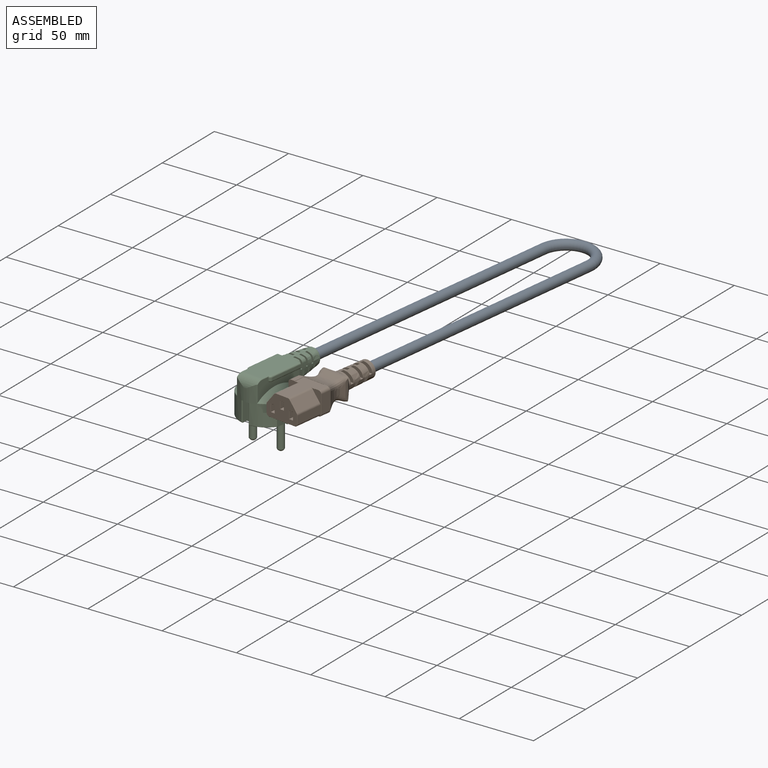
[diagram: assembled view]
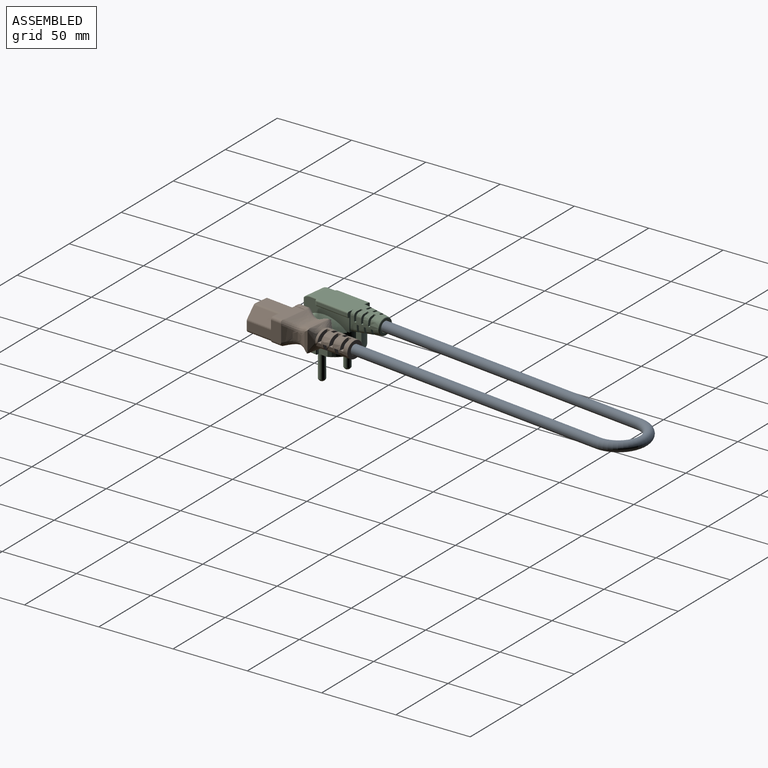
[diagram: assembled view, second angle]
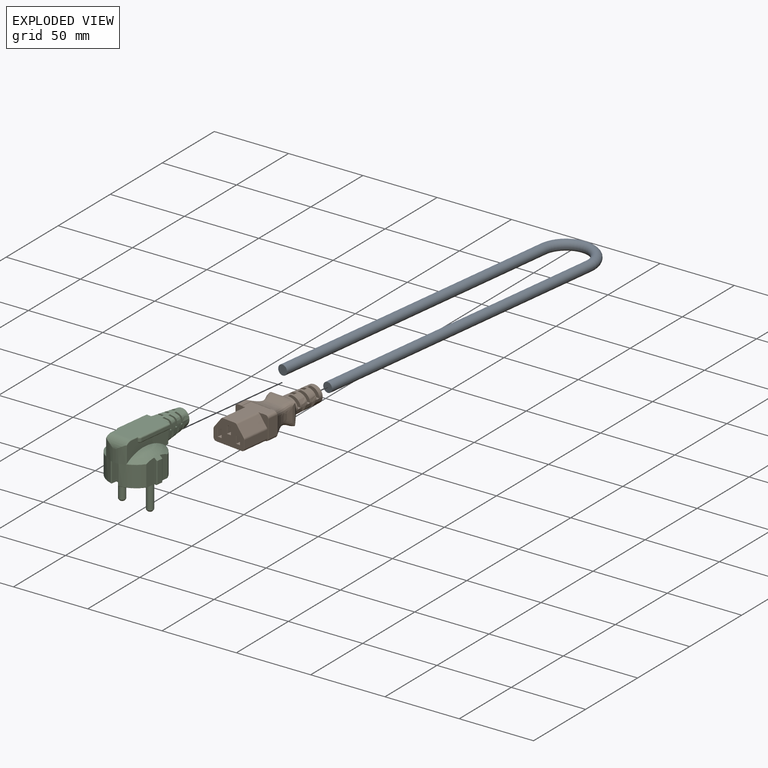
[diagram: exploded view]
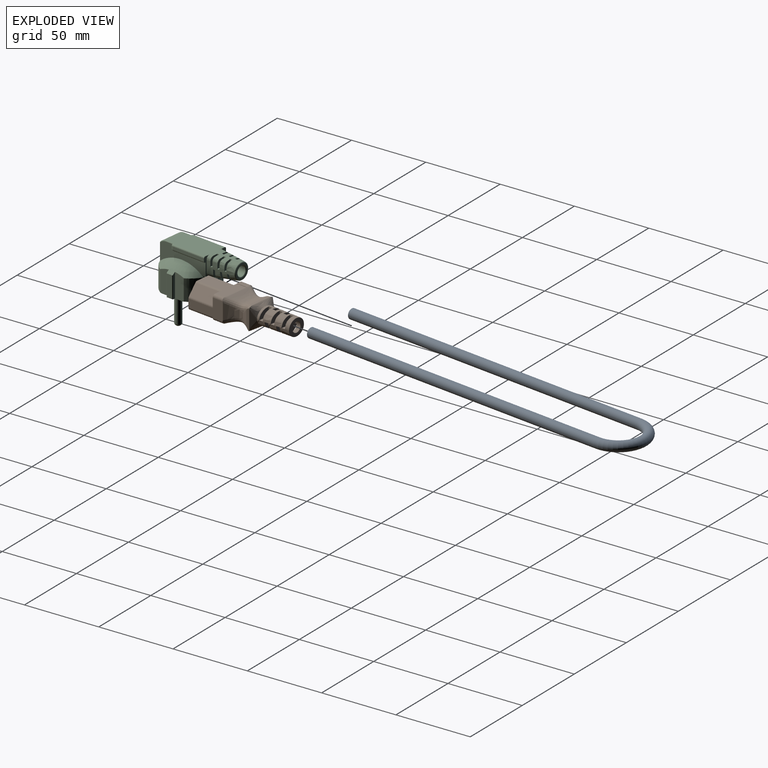
[diagram: exploded view, second angle]
ASSEMBLY  parts=3 mates=2
PART A: 5 faces, bbox 43.5x235.5x6.6 mm
  f0: plane 6.6x6.6mm, normal (0,1,0), area 34.2mm2, adj f2
  f1: plane 6.6x6.6mm, normal (0,1,0), area 34.2mm2, adj f4
  f2: cylinder r=3.3mm len=213.78mm, axis (0,-1,0), area 4432.6mm2, adj f0,f3
  f3: torus R=16.8mm, axis (0,0,1), area 1094.1mm2, adj f2,f4
  f4: cylinder r=3.3mm len=213.78mm, axis (0,1,0), area 4432.6mm2, adj f1,f3
PART B: 190 faces, bbox 44x23.6x70.4 mm
  f0: plane 7.5x2.75mm, normal (0,-1,0), area 20.6mm2, adj f26,f55,f101,f145,f188
  f1: plane 7.15x2.85mm, normal (0,1,0), area 20.4mm2, adj f57,f98,f99,f150
  f2: plane 7.03x5.83mm, normal (0,0,-1), area 20.7mm2, adj f38,f60,f63,f90
  f3: plane 6.91x5.65mm, normal (0,0,1), area 20.2mm2, adj f60,f63,f90,f132
  f4: plane 7.32x5.69mm, normal (0,0,-1), area 22.1mm2, adj f66,f69,f90,f127
  f5: plane 7.44x5.69mm, normal (0,0,1), area 22.7mm2, adj f66,f69,f90,f137
  f6: plane 7.59x5.72mm, normal (0,0,-1), area 23.2mm2, adj f72,f75,f90,f128
  f7: plane 7.7x5.72mm, normal (0,0,1), area 23.8mm2, adj f72,f75,f90,f134
  f8: plane 6.91x5.64mm, normal (0,0,-1), area 20.3mm2, adj f78,f81,f90,f130
  f9: plane 7.04x5.66mm, normal (0,0,1), area 20.8mm2, adj f78,f81,f90,f131
  f10: plane 7.18x5.68mm, normal (0,0,-1), area 21.4mm2, adj f84,f87,f90,f129
  f11: plane 7.3x5.69mm, normal (0,0,1), area 21.9mm2, adj f84,f87,f90,f133
  f12: plane 15.8x7.24mm, normal (0,0,-1), area 34.4mm2, adj f16,f17,f18,f55,f58,f104,f105,f106
  f13: plane 22.9x15.5mm, normal (0,0,-1), area 259.6mm2, adj f156,f157,f158,f159,f160,f161,f162,f163
  f14: plane 18.7x6.55mm, normal (-0.78,0.62,0), area 156.5mm2, adj f20,f102,f107,f161
  f15: plane 18.7x5.15mm, normal (-1,0,0), area 96.3mm2, adj f20,f102,f103,f157
  f16: plane 26.2x19.1mm, normal (0,-1,0), area 470.4mm2, adj f12,f20,f54,f55,f56,f103,f104,f158
  f17: plane 18.7x5.15mm, normal (1,0,0), area 96.3mm2, adj f12,f104,f105,f162
  f18: plane 18.7x6.55mm, normal (0.78,0.62,0), area 156.5mm2, adj f12,f105,f106,f166
  f19: plane 26.2x14.9mm, normal (0,1,0), area 273.3mm2, adj f57,f58,f59,f106,f107,f144,f155,f165
  f20: plane 15.8x7.24mm, normal (0,0,-1), area 34.4mm2, adj f14,f15,f16,f54,f57,f102,f103,f107
  f21: plane 7.15x2.85mm, normal (0,1,0), area 20.4mm2, adj f58,f97,f98,f149
  f22: plane 12.06x7.56mm, normal (-1,0,0), area 89.9mm2, adj f25,f99,f100,f152,f184,f189
  f23: plane 7.5x2.75mm, normal (0,-1,0), area 20.6mm2, adj f26,f54,f100,f154,f189
  f24: plane 12.02x7.49mm, normal (1,0,0), area 89.7mm2, adj f97,f101,f118,f147,f180,f188
  f25: bspline ~16x15.1mm, area 119.8mm2, adj f22,f30,f184,f187,f189
  f26: bspline ~24.6x15.1mm, area 224.9mm2, adj f0,f23,f31,f143,f188,f189
  f27: bspline ~16x15.1mm, area 119.5mm2, adj f32,f118,f180,f183,f188
  f28: bspline ~24.6x15.1mm, area 198.2mm2, adj f96,f98,f180,f181,f184,f186
  f29: plane 14.99x1.75mm, normal (0,1,0), area 24.2mm2, adj f96,f110,f183,f187
  f30: plane 14.06x2.24mm, normal (-1,0,0), area 26.9mm2, adj f25,f108,f109,f111,f187,f189
  f31: plane 19.38x2.19mm, normal (0,-1,0), area 38.1mm2, adj f26,f112,f114,f116,f188,f189
  f32: plane 14.02x2.18mm, normal (1,0,0), area 26.9mm2, adj f27,f113,f115,f117,f183,f188
  f33: bspline ~15x5.26mm, area 51.8mm2, adj f38,f94,f95,f109
  f34: bspline ~19.4x3.99mm, area 59.1mm2, adj f38,f93,f94,f114
  f35: bspline ~15x5.26mm, area 51.8mm2, adj f38,f92,f93,f115
  f36: bspline ~19.4x3.99mm, area 57.4mm2, adj f38,f92,f95,f110,f183,f187
  f37: plane 12.12x11.2mm, normal (0,0,1), area 68.3mm2, adj f138,f139,f140,f141,f142
  f38: bspline ~22.9x14.39mm, area 631.4mm2, adj f2,f33,f34,f35,f36,f60,f61,f62
  f39: plane 15.4x5mm, normal (-1,0,0), area 77mm2, adj f40,f42,f43,f172
  f40: plane 15.4x2.7mm, normal (0,1,0), area 41.6mm2, adj f39,f41,f43,f173
  f41: plane 15.4x5mm, normal (1,0,0), area 77mm2, adj f40,f42,f43,f175
  f42: plane 15.4x2.7mm, normal (0,-1,0), area 41.6mm2, adj f39,f41,f43,f174
  f43: plane 5x2.7mm, normal (0,0,-1), area 13.5mm2, adj f39,f40,f41,f42
  f44: plane 15.4x5mm, normal (1,0,0), area 77mm2, adj f45,f47,f48,f176
  f45: plane 15.4x2.7mm, normal (0,-1,0), area 41.6mm2, adj f44,f46,f48,f177
  f46: plane 15.4x5mm, normal (-1,0,0), area 77mm2, adj f45,f47,f48,f179
  f47: plane 15.4x2.7mm, normal (0,1,0), area 41.6mm2, adj f44,f46,f48,f178
  f48: plane 5x2.7mm, normal (0,0,-1), area 13.5mm2, adj f44,f45,f46,f47
  f49: plane 15.4x5mm, normal (1,0,0), area 77mm2, adj f50,f52,f53,f168
  f50: plane 15.4x2.7mm, normal (0,-1,0), area 41.6mm2, adj f49,f51,f53,f170
  f51: plane 15.4x5mm, normal (-1,0,0), area 77mm2, adj f50,f52,f53,f171
  f52: plane 15.4x2.7mm, normal (0,1,0), area 41.6mm2, adj f49,f51,f53,f169
  f53: plane 5x2.7mm, normal (0,0,-1), area 13.5mm2, adj f49,f50,f51,f52
  f54: plane 7.6x0.15mm, normal (1,0,0), area 1.1mm2, adj f16,f20,f23,f56,f143,f154
  f55: plane 7.6x0.15mm, normal (-1,0,0), area 1.1mm2, adj f0,f12,f16,f56,f143,f145
  f56: plane 15.1x0.05mm, normal (0,0,-1), area 0.8mm2, adj f16,f54,f55,f143
  f57: plane 7.5x0.25mm, normal (1,0,0), area 1.1mm2, adj f1,f19,f20,f59,f98,f150,f155
  f58: plane 7.5x0.25mm, normal (-1,0,0), area 1.1mm2, adj f12,f19,f21,f59,f98,f144,f149
  f59: plane 14.9x0.13mm, normal (0,0,-1), area 2mm2, adj f19,f57,f58,f98
  f60: plane 3.05x2.4mm, normal (0,1,0), area 6.9mm2, adj f2,f3,f38,f90,f132
  f61: plane 2.5x2.39mm, normal (1,0,0), area 5.5mm2, adj f38,f64,f65,f90,f123,f124
  f62: plane 3.05x2.5mm, normal (0,-1,0), area 6.9mm2, adj f38,f64,f65,f90,f123,f124
  f63: plane 2.4x2.39mm, normal (-1,0,0), area 5.5mm2, adj f2,f3,f38,f90,f132
  f64: plane 6.73x5.63mm, normal (0,0,-1), area 19.5mm2, adj f61,f62,f90,f123
  f65: plane 6.86x5.66mm, normal (0,0,1), area 20.1mm2, adj f61,f62,f90,f124
  f66: plane 2.5x2.42mm, normal (1,0,0), area 5.6mm2, adj f4,f5,f38,f90,f127,f137
  f67: plane 3.63x2.5mm, normal (0,-1,0), area 8.2mm2, adj f38,f70,f71,f90,f119,f120
  f68: plane 2.5x2.42mm, normal (-1,0,0), area 5.6mm2, adj f38,f70,f71,f90,f119,f120
  f69: plane 3.63x2.5mm, normal (0,1,0), area 8.2mm2, adj f4,f5,f38,f90,f127,f137
  f70: plane 7.37x5.68mm, normal (0,0,-1), area 22.2mm2, adj f67,f68,f90,f120
  f71: plane 7.51x5.71mm, normal (0,0,1), area 22.8mm2, adj f67,f68,f90,f119
  f72: plane 3.82x2.5mm, normal (0,1,0), area 8.7mm2, adj f6,f7,f38,f90,f128,f134
  f73: plane 2.5x2.43mm, normal (1,0,0), area 5.6mm2, adj f38,f76,f77,f90,f135,f136
  f74: plane 3.82x2.5mm, normal (0,-1,0), area 8.7mm2, adj f38,f76,f77,f90,f135,f136
  f75: plane 2.5x2.43mm, normal (-1,0,0), area 5.6mm2, adj f6,f7,f38,f90,f128,f134
  f76: plane 7.53x5.71mm, normal (0,0,-1), area 23.1mm2, adj f73,f74,f90,f135
  f77: plane 7.65x5.72mm, normal (0,0,1), area 23.7mm2, adj f73,f74,f90,f136
  f78: plane 2.5x2.4mm, normal (1,0,0), area 5.5mm2, adj f8,f9,f38,f90,f130,f131
  f79: plane 3.24x2.5mm, normal (0,-1,0), area 7.3mm2, adj f38,f82,f83,f90,f121,f122
  f80: plane 2.5x2.4mm, normal (-1,0,0), area 5.5mm2, adj f38,f82,f83,f90,f121,f122
  f81: plane 3.24x2.5mm, normal (0,1,0), area 7.3mm2, adj f8,f9,f38,f90,f130,f131
  f82: plane 6.96x5.64mm, normal (0,0,-1), area 20.4mm2, adj f79,f80,f90,f121
  f83: plane 7.1x5.67mm, normal (0,0,1), area 21mm2, adj f79,f80,f90,f122
  f84: plane 3.42x2.5mm, normal (0,1,0), area 7.7mm2, adj f10,f11,f38,f90,f129,f133
  f85: plane 2.5x2.4mm, normal (1,0,0), area 5.5mm2, adj f38,f88,f89,f90,f125,f126
  f86: plane 3.42x2.5mm, normal (0,-1,0), area 7.7mm2, adj f38,f88,f89,f90,f125,f126
  f87: plane 2.5x2.41mm, normal (-1,0,0), area 5.5mm2, adj f10,f11,f38,f90,f129,f133
  f88: plane 7.12x5.68mm, normal (0,0,-1), area 21.3mm2, adj f85,f86,f90,f125
  f89: plane 7.24x5.68mm, normal (0,0,1), area 21.8mm2, adj f85,f86,f90,f126
  f90: cylinder r=3.3mm len=32.6mm, axis (0,0,1), area 543mm2, adj f2,f3,f4,f5,f6,f7,f8,f9
  f91: plane 6.6x6.6mm, normal (0,0,1), area 34.2mm2, adj f90
  f92: bspline ~5.37x4.03mm, area 7.7mm2, adj f35,f36,f113,f183
  f93: bspline ~5.48x5.43mm, area 5.5mm2, adj f34,f35,f116,f117
  f94: bspline ~6.49x4.93mm, area 6mm2, adj f33,f34,f111,f112
  f95: bspline ~4.65x4.6mm, area 6.2mm2, adj f33,f36,f108,f187
  f96: bspline ~22x0.84mm, area 11.5mm2, adj f28,f29,f181,f186
  f97: cylinder r=2mm len=7.37mm, axis (0,0,-1), area 22.4mm2, adj f21,f24,f98,f148,f180
  f98: bspline ~31.43x0.68mm, area 9.9mm2, adj f1,f21,f28,f57,f58,f59,f97,f99
  f99: cylinder r=2mm len=7.37mm, axis (0,0,1), area 22.4mm2, adj f1,f22,f98,f151,f184
  f100: cylinder r=2mm len=7.37mm, axis (0,0,-1), area 23mm2, adj f22,f23,f153,f189
  f101: cylinder r=2mm len=7.37mm, axis (0,0,1), area 23mm2, adj f0,f24,f146,f188
  f102: cylinder r=2mm len=18.7mm, axis (0,0,-1), area 25.1mm2, adj f14,f15,f20,f159
  f103: cylinder r=2mm len=18.7mm, axis (0,0,-1), area 58.7mm2, adj f15,f16,f20,f156
  f104: cylinder r=2mm len=18.7mm, axis (0,0,1), area 58.7mm2, adj f12,f16,f17,f160
  f105: cylinder r=2mm len=18.7mm, axis (0,0,-1), area 25.1mm2, adj f12,f17,f18,f164
  f106: cylinder r=2mm len=18.8mm, axis (0,0,-1), area 33.6mm2, adj f12,f18,f19,f144,f167
  f107: cylinder r=2mm len=18.8mm, axis (0,0,1), area 33.6mm2, adj f14,f19,f20,f155,f163
  f108: bspline ~0.54x0.13mm, area 0mm2, adj f30,f95,f109,f187
  f109: bspline ~12.21x0.08mm, area 0.8mm2, adj f30,f33,f108,f111
  f110: bspline ~15.52x0.07mm, area 0.8mm2, adj f29,f36,f183,f187
  f111: bspline ~1.45x0.58mm, area 0.1mm2, adj f30,f94,f109,f112,f189
  f112: bspline ~1.76x0.49mm, area 0.1mm2, adj f31,f94,f111,f114,f189
  f113: bspline ~1.45x0.58mm, area 0mm2, adj f32,f92,f115,f183
  f114: bspline ~16.19x0.07mm, area 0.9mm2, adj f31,f34,f112,f116
  f115: bspline ~12.21x0.08mm, area 0.8mm2, adj f32,f35,f113,f117
  f116: bspline ~1.45x0.48mm, area 0.1mm2, adj f31,f93,f114,f117,f188
  f117: bspline ~1.47x0.48mm, area 0.1mm2, adj f32,f93,f115,f116,f188
  f118: bspline ~12x0.05mm, area 0.5mm2, adj f24,f27,f180,f188
  f119: bspline ~8.17x6.27mm, area 1.5mm2, adj f38,f67,f68,f71
  f120: bspline ~8.03x6.25mm, area 1.5mm2, adj f38,f67,f68,f70
  f121: bspline ~7.61x6.22mm, area 1.4mm2, adj f38,f79,f80,f82
  f122: bspline ~7.69x6.23mm, area 1.4mm2, adj f38,f79,f80,f83
  f123: bspline ~7.37x6.21mm, area 1.4mm2, adj f38,f61,f62,f64
  f124: bspline ~7.5x6.22mm, area 1.4mm2, adj f38,f61,f62,f65
  f125: bspline ~7.76x6.24mm, area 1.5mm2, adj f38,f85,f86,f88
  f126: bspline ~7.89x6.24mm, area 1.4mm2, adj f38,f85,f86,f89
  f127: bspline ~7.98x6.26mm, area 1.5mm2, adj f4,f38,f66,f69
  f128: bspline ~8.24x6.28mm, area 1.5mm2, adj f6,f38,f72,f75
  f129: bspline ~7.82x6.24mm, area 1.5mm2, adj f10,f38,f84,f87
  f130: bspline ~7.56x6.36mm, area 1.4mm2, adj f8,f38,f78,f81
  f131: bspline ~7.69x6.23mm, area 1.4mm2, adj f9,f38,f78,f81
  f132: bspline ~7.55x6.22mm, area 1.4mm2, adj f3,f38,f60,f63
  f133: bspline ~7.95x6.25mm, area 1.4mm2, adj f11,f38,f84,f87
  f134: bspline ~8.37x6.28mm, area 1.5mm2, adj f7,f38,f72,f75
  f135: bspline ~8.19x6.27mm, area 1.5mm2, adj f38,f73,f74,f76
  f136: bspline ~8.31x6.29mm, area 1.5mm2, adj f38,f73,f74,f77
  f137: bspline ~7.51x5.69mm, area 1.5mm2, adj f5,f38,f66,f69
  f138: bspline ~7.99x2.08mm, area 1.2mm2, adj f37,f38,f139,f140
  f139: bspline ~8.62x1.93mm, area 1.3mm2, adj f37,f38,f138,f141
  f140: bspline ~8.62x1.93mm, area 1.3mm2, adj f37,f38,f138,f141
  f141: bspline ~7.99x2.08mm, area -2.5mm2, adj f37,f38,f139,f140
  f142: cone r=3.3mm half-angle=45deg, axis (0,0,1), area 3mm2, adj f37,f90
  f143: plane 15.1x0.1mm, normal (0,-0.71,-0.71), area 2.1mm2, adj f26,f54,f55,f56
  f144: plane 3.16x0.15mm, normal (0,0.71,-0.71), area 0.4mm2, adj f12,f19,f58,f106
  f145: plane 2.75x0.1mm, normal (0,-0.71,-0.71), area 0.4mm2, adj f0,f12,f55,f146
  f146: cone r=1.9mm half-angle=45deg, axis (0,0,1), area 0.4mm2, adj f12,f101,f145,f147
  f147: plane 12x0.1mm, normal (0.71,0,-0.71), area 1.7mm2, adj f12,f24,f146,f148
  f148: cone r=1.9mm half-angle=45deg, axis (0,0,1), area 0.4mm2, adj f12,f97,f147,f149
  f149: plane 2.85x0.1mm, normal (0,0.71,-0.71), area 0.4mm2, adj f12,f21,f58,f148
  f150: plane 2.85x0.1mm, normal (0,0.71,-0.71), area 0.4mm2, adj f1,f20,f57,f151
  f151: cone r=1.9mm half-angle=45deg, axis (0,0,1), area 0.4mm2, adj f20,f99,f150,f152
  f152: plane 12x0.1mm, normal (-0.71,0,-0.71), area 1.7mm2, adj f20,f22,f151,f153
  f153: cone r=1.9mm half-angle=45deg, axis (0,0,1), area 0.4mm2, adj f20,f100,f152,f154
  f154: plane 2.75x0.1mm, normal (0,-0.71,-0.71), area 0.4mm2, adj f20,f23,f54,f153
  f155: plane 3.16x0.15mm, normal (0,0.71,-0.71), area 0.4mm2, adj f19,f20,f57,f107
  f156: cone r=1.9mm half-angle=45deg, axis (0,0,1), area 0.4mm2, adj f13,f103,f157,f158
  f157: plane 5.15x0.1mm, normal (-0.71,0,-0.71), area 0.7mm2, adj f13,f15,f156,f159
  f158: plane 19.1x0.1mm, normal (0,-0.71,-0.71), area 2.7mm2, adj f13,f16,f156,f160
  f159: cone r=1.9mm half-angle=45deg, axis (0,0,1), area 0.2mm2, adj f13,f102,f157,f161
  f160: cone r=1.9mm half-angle=45deg, axis (0,0,1), area 0.4mm2, adj f13,f104,f158,f162
  f161: plane 6.61x5.29mm, normal (-0.55,0.44,-0.71), area 1.2mm2, adj f13,f14,f159,f163
  f162: plane 5.15x0.1mm, normal (0.71,0,-0.71), area 0.7mm2, adj f13,f17,f160,f164
  f163: cone r=1.9mm half-angle=45deg, axis (0,0,1), area 0.2mm2, adj f13,f107,f161,f165
  f164: cone r=1.9mm half-angle=45deg, axis (0,0,1), area 0.2mm2, adj f13,f105,f162,f166
  f165: plane 8.67x0.1mm, normal (0,0.71,-0.71), area 1.2mm2, adj f13,f19,f163,f167
  f166: plane 6.61x5.29mm, normal (0.55,0.44,-0.71), area 1.2mm2, adj f13,f18,f164,f167
  f167: cone r=1.9mm half-angle=45deg, axis (0,0,1), area 0.2mm2, adj f13,f106,f165,f166
  f168: plane 5.2x0.1mm, normal (0.71,0,-0.71), area 0.7mm2, adj f13,f49,f169,f170
  f169: plane 2.9x0.1mm, normal (0,0.71,-0.71), area 0.4mm2, adj f13,f52,f168,f171
  f170: plane 2.9x0.1mm, normal (0,-0.71,-0.71), area 0.4mm2, adj f13,f50,f168,f171
  f171: plane 5.2x0.1mm, normal (-0.71,0,-0.71), area 0.7mm2, adj f13,f51,f169,f170
  f172: plane 5.2x0.1mm, normal (-0.71,0,-0.71), area 0.7mm2, adj f13,f39,f173,f174
  f173: plane 2.9x0.1mm, normal (0,0.71,-0.71), area 0.4mm2, adj f13,f40,f172,f175
  f174: plane 2.9x0.1mm, normal (0,-0.71,-0.71), area 0.4mm2, adj f13,f42,f172,f175
  f175: plane 5.2x0.1mm, normal (0.71,0,-0.71), area 0.7mm2, adj f13,f41,f173,f174
  f176: plane 5.2x0.1mm, normal (0.71,0,-0.71), area 0.7mm2, adj f13,f44,f177,f178
  f177: plane 2.9x0.1mm, normal (0,-0.71,-0.71), area 0.4mm2, adj f13,f45,f176,f179
  f178: plane 2.9x0.1mm, normal (0,0.71,-0.71), area 0.4mm2, adj f13,f47,f176,f179
  f179: plane 5.2x0.1mm, normal (-0.71,0,-0.71), area 0.7mm2, adj f13,f46,f177,f178
  f180: bspline ~32.89x16.44mm, area 72.1mm2, adj f24,f27,f28,f97,f98,f118,f182
  f181: bspline ~0.95x0.91mm, area 0.3mm2, adj f28,f96,f182,f183
  f182: bspline ~3.34x3mm, area 1.3mm2, adj f180,f181,f183
  f183: bspline ~5.26x4.46mm, area 8.6mm2, adj f27,f29,f32,f36,f92,f110,f113,f181
  f184: bspline ~33.02x16.44mm, area 72.1mm2, adj f22,f25,f28,f98,f99,f185
  f185: bspline ~3.34x3mm, area 1.3mm2, adj f184,f186,f187
  f186: bspline ~0.93x0.8mm, area 0.3mm2, adj f28,f96,f185,f187
  f187: bspline ~6.24x4.86mm, area 8.7mm2, adj f25,f29,f30,f36,f95,f108,f110,f185
  f188: bspline ~20.32x7.82mm, area 78.6mm2, adj f0,f24,f26,f27,f31,f32,f101,f116
  f189: bspline ~20.64x8.04mm, area 78.6mm2, adj f22,f23,f25,f26,f30,f31,f100,f111
PART C: 157 faces, bbox 36.1x57.7x48 mm
  f0: sphere r=26.84mm, area 256.2mm2, adj f1,f147,f148,f149,f150,f151,f152,f153
  f1: plane 16.19x1.56mm, normal (0,1,0), area 24.2mm2, adj f0,f2,f147,f156
  f2: plane 34.55x34.3mm, normal (0,0,-1), area 843mm2, adj f1,f3,f123,f124,f125,f126,f127,f128
  f3: plane 16.19x1.56mm, normal (0,1,0), area 24.2mm2, adj f2,f4,f122,f140
  f4: sphere r=26.84mm, area 256.3mm2, adj f3,f5,f118,f119,f120,f121,f122,f124
  f5: cylinder r=0.5mm len=11.59mm, axis (0,0,-1), area 6.5mm2, adj f4,f6,f116,f118,f121
  f6: torus R=5.6mm, axis (1,0,0), area 3.9mm2, adj f5,f7,f113,f116,f121
  f7: cylinder r=0.5mm len=5.61mm, axis (0,1,0), area 4.1mm2, adj f6,f8,f112,f121
  f8: plane 29.7x16.1mm, normal (0,0,1), area 467.6mm2, adj f7,f9,f15,f101,f102,f108,f109,f110
  f9: cylinder r=1mm len=23.09mm, axis (0,-1,0), area 36.3mm2, adj f8,f10,f15,f112
  f10: plane 23.09x1.8mm, normal (-1,0,0), area 41.6mm2, adj f9,f11,f14,f15
  f11: cylinder r=2mm len=1.91mm, axis (0,0,1), area 4.6mm2, adj f10,f12,f112,f121
  f12: torus R=1mm, axis (0,0,1), area 2.9mm2, adj f11,f13,f14,f121
  f13: plane 23.89x0.4mm, normal (0,0,-1), area 9.5mm2, adj f12,f14,f15,f121
  f14: cylinder r=1mm len=23.09mm, axis (0,1,0), area 36.3mm2, adj f10,f12,f13,f15
  f15: plane 13.08x4.89mm, normal (0,1,0), area 17.7mm2, adj f8,f9,f10,f13,f14,f16,f98,f99
  f16: plane 15.82x3.24mm, normal (0,0,-1), area 16.8mm2, adj f15,f17,f92,f93,f98,f102,f121,f154
  f17: bspline ~11.87x3.62mm, area 16.3mm2, adj f16,f18,f91,f92,f102
  f18: bspline ~20x13mm, area 125.4mm2, adj f17,f19,f67,f68,f69,f70,f71,f72
  f19: plane 4.77x4.42mm, normal (0,-1,0), area 14mm2, adj f18,f20,f21,f67,f90,f92
  f20: plane 2.88x1.4mm, normal (1,0,0), area 3.9mm2, adj f19,f21,f68,f92
  f21: cylinder r=3.3mm len=24.5mm, axis (0,1,0), area 447.7mm2, adj f19,f20,f22,f23,f24,f25,f27,f28
  f22: plane 2.39x1.4mm, normal (1,0,0), area 3.3mm2, adj f21,f77,f79,f101
  f23: plane 5.95x5.86mm, normal (0,1,0), area 28.3mm2, adj f21,f24,f27,f92,f98,f99
  f24: plane 3.75x1.4mm, normal (0,0,-1), area 5.2mm2, adj f21,f23,f25,f99
  f25: plane 5.83x5.69mm, normal (0,-1,0), area 26.6mm2, adj f21,f24,f26,f27,f92,f99
  f26: bspline ~7.57x3.09mm, area 11.9mm2, adj f25,f29,f92,f99
  f27: plane 4x1.4mm, normal (-1,0,0), area 5.5mm2, adj f21,f23,f25,f92
  f28: plane 2.34x1.4mm, normal (1,0,0), area 3.3mm2, adj f21,f81,f83,f101
  f29: plane 5.56x5.31mm, normal (0,1,0), area 22.6mm2, adj f21,f26,f30,f33,f92,f99
  f30: plane 3.42x1.4mm, normal (0,0,-1), area 4.7mm2, adj f21,f29,f31,f99
  f31: plane 5.45x5.15mm, normal (0,-1,0), area 21mm2, adj f21,f30,f32,f33,f92,f99
  f32: bspline ~7.54x2.86mm, area 9.6mm2, adj f31,f35,f92,f99
  f33: plane 3.5x1.4mm, normal (-1,0,0), area 4.8mm2, adj f21,f29,f31,f92
  f34: plane 2.3x1.4mm, normal (1,0,0), area 3.2mm2, adj f21,f85,f87,f101
  f35: plane 5.14x4.74mm, normal (0,1,0), area 17.3mm2, adj f21,f32,f36,f48,f92,f99
  f36: plane 3.06x1.4mm, normal (0,0,-1), area 4.2mm2, adj f21,f35,f37,f99
  f37: plane 5.01x4.58mm, normal (0,-1,0), area 15.8mm2, adj f21,f36,f38,f48,f92,f99
  f38: bspline ~7.61x2.02mm, area 7.4mm2, adj f37,f39,f92,f99
  f39: bspline ~0.69x0.69mm, area 0.1mm2, adj f38,f40,f46,f47
  f40: plane 10.07x10.05mm, normal (0,1,0), area 34.7mm2, adj f39,f41,f42,f43,f44,f46,f47,f66
  f41: bspline ~0.59x0.57mm, area 0.1mm2, adj f40,f47,f89,f90
  f42: bspline ~0.62x0.61mm, area 0.1mm2, adj f40,f43,f88,f89
  f43: bspline ~8.28x2.54mm, area 6.2mm2, adj f40,f42,f44,f101
  f44: bspline ~0.61x0.59mm, area 0.1mm2, adj f40,f43,f45,f46
  f45: bspline ~6.02x1.6mm, area 4mm2, adj f44,f50,f99,f101
  f46: bspline ~8.15x2.4mm, area 6mm2, adj f39,f40,f44,f99
  f47: bspline ~8.31x2.56mm, area 5.9mm2, adj f39,f40,f41,f92
  f48: plane 3.01x1.4mm, normal (-1,0,0), area 4.1mm2, adj f21,f35,f37,f92
  f49: plane 2.34x1.4mm, normal (-1,0,0), area 3.3mm2, adj f21,f50,f52,f101
  f50: plane 5.87x4.9mm, normal (0,-1,0), area 16.8mm2, adj f21,f45,f49,f51,f99,f101
  f51: plane 2.61x1.4mm, normal (0,0,1), area 3.6mm2, adj f21,f50,f52,f99
  f52: plane 5.87x4.99mm, normal (0,1,0), area 17.7mm2, adj f21,f49,f51,f53,f99,f101
  f53: bspline ~7.55x2.35mm, area 8.5mm2, adj f52,f55,f99,f101
  f54: plane 2.37x1.4mm, normal (-1,0,0), area 3.3mm2, adj f21,f55,f57,f101
  f55: plane 5.93x5.25mm, normal (0,-1,0), area 20.1mm2, adj f21,f53,f54,f56,f99,f101
  f56: plane 2.93x1.4mm, normal (0,0,1), area 4mm2, adj f21,f55,f57,f99
  f57: plane 5.95x5.35mm, normal (0,1,0), area 21mm2, adj f21,f54,f56,f58,f99,f101
  f58: bspline ~7.6x2.88mm, area 11.2mm2, adj f57,f61,f99,f101
  f59: plane 3.37x1.4mm, normal (1,0,0), area 4.6mm2, adj f21,f70,f72,f92
  f60: plane 2.4x1.4mm, normal (-1,0,0), area 3.3mm2, adj f21,f61,f63,f101
  f61: plane 6x5.62mm, normal (0,-1,0), area 23.3mm2, adj f21,f58,f60,f62,f99,f101
  f62: plane 3.26x1.4mm, normal (0,0,1), area 4.5mm2, adj f21,f61,f63,f99
  f63: plane 6.01x5.72mm, normal (0,1,0), area 24.3mm2, adj f21,f60,f62,f99,f100,f101
  f64: plane 3.84x1.4mm, normal (1,0,0), area 5.3mm2, adj f21,f74,f91,f92
  f65: plane 6.6x6.6mm, normal (0,1,0), area 34.2mm2, adj f21
  f66: torus R=3.8mm, axis (0,1,0), area 17.2mm2, adj f21,f40
  f67: plane 2.86x1.4mm, normal (0,0,-1), area 3.9mm2, adj f18,f19,f21,f68
  f68: plane 4.9x4.58mm, normal (0,1,0), area 15.5mm2, adj f18,f20,f21,f67,f69,f92
  f69: bspline ~7.38x2.34mm, area 8.4mm2, adj f18,f68,f70,f92
  f70: plane 5.23x4.99mm, normal (0,-1,0), area 19.1mm2, adj f18,f21,f59,f69,f71,f92
  f71: plane 3.24x1.4mm, normal (0,0,-1), area 4.5mm2, adj f18,f21,f70,f72
  f72: plane 5.36x5.14mm, normal (0,1,0), area 20.6mm2, adj f18,f21,f59,f71,f73,f92
  f73: bspline ~7.46x2.87mm, area 11.1mm2, adj f18,f72,f74,f92
  f74: plane 5.67x5.53mm, normal (0,-1,0), area 24.6mm2, adj f18,f21,f64,f73,f75,f92
  f75: plane 3.61x1.4mm, normal (0,0,-1), area 5mm2, adj f18,f21,f74,f91
  f76: bspline ~8.91x3.08mm, area 9.9mm2, adj f18,f77,f101,f102
  f77: plane 6.02x5.87mm, normal (0,1,0), area 25.5mm2, adj f18,f21,f22,f76,f78,f101
  f78: plane 3.39x1.4mm, normal (0,0,1), area 4.7mm2, adj f18,f21,f77,f79
  f79: plane 5.99x5.76mm, normal (0,-1,0), area 24.5mm2, adj f18,f21,f22,f78,f80,f101
  f80: bspline ~10.33x2.78mm, area 11.9mm2, adj f18,f79,f81,f101
  f81: plane 5.94x5.51mm, normal (0,1,0), area 22.2mm2, adj f18,f21,f28,f80,f82,f101
  f82: plane 3.06x1.4mm, normal (0,0,1), area 4.2mm2, adj f18,f21,f81,f83
  f83: plane 5.93x5.41mm, normal (0,-1,0), area 21.2mm2, adj f18,f21,f28,f82,f84,f101
  f84: bspline ~7.44x2.26mm, area 9.6mm2, adj f18,f83,f85,f101
  f85: plane 5.86x5.13mm, normal (0,1,0), area 18.9mm2, adj f18,f21,f34,f84,f86,f101
  f86: plane 2.73x1.4mm, normal (0,0,1), area 3.7mm2, adj f18,f21,f85,f87
  f87: plane 5.84x5.03mm, normal (0,-1,0), area 18mm2, adj f18,f21,f34,f86,f88,f101
  f88: bspline ~7.55x1.75mm, area 7.5mm2, adj f18,f42,f87,f101
  f89: bspline ~8.13x2.56mm, area 6mm2, adj f18,f40,f41,f42
  f90: bspline ~6.04x1.61mm, area 4mm2, adj f18,f19,f41,f92
  f91: plane 5.78x5.68mm, normal (0,1,0), area 26.2mm2, adj f17,f18,f21,f64,f75,f92
  f92: bspline ~20x13.7mm, area 127.9mm2, adj f16,f17,f19,f20,f23,f25,f26,f27
  f93: cylinder r=17.94mm len=31.2mm, axis (0,0,-1), area 469.1mm2, adj f16,f94,f95,f96,f97,f120,f121,f135
  f94: plane 4.6x4.14mm, normal (0,0,-1), area 18.8mm2, adj f93,f136,f137,f138
  f95: bspline ~20x9.13mm, area 0mm2, adj f93,f96
  f96: plane 2.15x0.55mm, normal (0,1,0), area 0.9mm2, adj f93,f95,f97
  f97: sphere r=26.84mm, area 0mm2, adj f93,f96
  f98: bspline ~9.11x3.69mm, area 9.9mm2, adj f15,f16,f23,f92,f99
  f99: bspline ~20x13mm, area 124.4mm2, adj f15,f23,f24,f25,f26,f29,f30,f31
  f100: bspline ~12.05x3.67mm, area 16.5mm2, adj f15,f63,f99,f101
  f101: bspline ~20x13.7mm, area 132.9mm2, adj f8,f22,f28,f34,f43,f45,f49,f50
  f102: plane 13.09x4.88mm, normal (0,1,0), area 17.7mm2, adj f8,f16,f17,f18,f76,f103,f106,f107
  f103: plane 23.89x0.4mm, normal (0,0,-1), area 9.5mm2, adj f102,f104,f106,f154
  f104: torus R=1mm, axis (0,0,-1), area 2.9mm2, adj f103,f105,f106,f154
  f105: cylinder r=2mm len=1.91mm, axis (0,0,-1), area 4.6mm2, adj f104,f107,f109,f154
  f106: cylinder r=1mm len=23.09mm, axis (0,-1,0), area 36.3mm2, adj f102,f103,f104,f107
  f107: plane 23.09x1.8mm, normal (1,0,0), area 41.6mm2, adj f102,f105,f106,f108
  f108: cylinder r=1mm len=23.09mm, axis (0,-1,0), area 36.3mm2, adj f8,f102,f107,f109
  f109: torus R=1mm, axis (0,0,1), area 3.3mm2, adj f8,f105,f108,f110,f154
  f110: cylinder r=0.5mm len=5.61mm, axis (0,-1,0), area 4.1mm2, adj f8,f109,f111,f154
  f111: torus R=5.6mm, axis (1,0,0), area 3.9mm2, adj f110,f113,f116,f153,f154
  f112: torus R=1mm, axis (0,0,1), area 3.3mm2, adj f7,f8,f9,f11,f121
  f113: cylinder r=6.1mm len=14.3mm, axis (-1,0,0), area 110.7mm2, adj f6,f8,f111,f114,f116
  f114: plane 7.45x2.15mm, normal (0,-1,0), area 15.2mm2, adj f113,f115,f116
  f115: sphere r=26.84mm, area 0mm2, adj f114,f116
  f116: cylinder r=17.94mm len=31.2mm, axis (0,0,-1), area 572.2mm2, adj f5,f6,f111,f113,f114,f115,f117,f118
  f117: plane 5.76x4.14mm, normal (0,0,-1), area 19mm2, adj f116,f128,f129,f130,f131,f132
  f118: bspline ~10.39x9.87mm, area 4.8mm2, adj f4,f5,f116,f126
  f119: plane 14.18x4.1mm, normal (-1,0,0), area 58mm2, adj f4,f122,f123,f124
  f120: bspline ~9.48x8.8mm, area 4.7mm2, adj f4,f93,f121,f140
  f121: plane 34.17x13.57mm, normal (-1,0,0), area 225.4mm2, adj f4,f5,f6,f7,f11,f12,f13,f15
  f122: cylinder r=0.5mm len=14.98mm, axis (0,0,1), area 11.4mm2, adj f3,f4,f119,f123
  f123: cylinder r=0.5mm len=4.6mm, axis (0,-1,0), area 3.4mm2, adj f2,f119,f122,f124
  f124: plane 15.82x1.56mm, normal (0,-1,0), area 23.5mm2, adj f2,f4,f119,f123,f125
  f125: cylinder r=0.5mm len=16.12mm, axis (0,0,-1), area 12.5mm2, adj f2,f4,f124,f126
  f126: plane 16.39x6.32mm, normal (-1,0,0), area 93.2mm2, adj f2,f4,f116,f118,f125,f127
  f127: torus R=17.44mm, axis (0,0,1), area 13mm2, adj f2,f116,f126,f128
  f128: cylinder r=0.5mm len=13.7mm, axis (0,0,-1), area 11.7mm2, adj f2,f116,f117,f127,f129
  f129: plane 13.7x3.42mm, normal (1,0,0), area 46.8mm2, adj f2,f117,f128,f130
  f130: plane 13.7x4.6mm, normal (0,-1,0), area 63mm2, adj f2,f117,f129,f131
  f131: plane 13.7x3.42mm, normal (-1,0,0), area 46.8mm2, adj f2,f117,f130,f132
  f132: cylinder r=0.5mm len=13.7mm, axis (0,0,-1), area 11.7mm2, adj f2,f116,f117,f131,f133
  f133: torus R=17.44mm, axis (0,0,1), area 13mm2, adj f2,f116,f132,f151
  f134: cylinder r=0.5mm len=4.6mm, axis (0,1,0), area 3.2mm2, adj f2,f147,f148,f149
  f135: torus R=17.44mm, axis (0,0,1), area 13.3mm2, adj f2,f93,f136,f156
  f136: plane 13.73x4.02mm, normal (-1,0,0), area 54.7mm2, adj f2,f93,f94,f135,f137
  f137: plane 13.7x4.6mm, normal (0,1,0), area 63mm2, adj f2,f94,f136,f138
  f138: plane 13.73x4.02mm, normal (1,0,0), area 54.7mm2, adj f2,f93,f94,f137,f139
  f139: torus R=17.44mm, axis (0,0,1), area 13.3mm2, adj f2,f93,f138,f140
  f140: plane 16.45x6.82mm, normal (-1,0,0), area 101.3mm2, adj f2,f3,f4,f93,f120,f139
  f141: cylinder r=2.3mm len=17.4mm, axis (0,0,1), area 251.5mm2, adj f2,f142
  f142: revolved ~4.59x4.59mm, area 24.1mm2, adj f141
  f143: cylinder r=2.3mm len=17.4mm, axis (0,0,1), area 251.5mm2, adj f2,f144
  f144: revolved ~4.59x4.59mm, area 24.1mm2, adj f143
  f145: cylinder r=2.6mm len=15mm, axis (0,0,-1), area 245mm2, adj f2,f146
  f146: plane 5.2x5.2mm, normal (0,0,-1), area 21.2mm2, adj f145
  f147: cylinder r=0.5mm len=14.98mm, axis (0,0,-1), area 11.4mm2, adj f0,f1,f134,f148
  f148: plane 14.18x3.6mm, normal (1,0,0), area 51mm2, adj f0,f134,f147,f149
  f149: cylinder r=0.5mm len=14.98mm, axis (0,0,1), area 11.4mm2, adj f0,f134,f148,f150
  f150: plane 16.19x1.56mm, normal (0,-1,0), area 24.2mm2, adj f0,f2,f149,f151
  f151: plane 16.45x6.82mm, normal (1,0,0), area 101.3mm2, adj f0,f2,f116,f133,f150,f152
  f152: bspline ~9.48x8.8mm, area 4.8mm2, adj f0,f116,f151,f153
  f153: cylinder r=0.5mm len=11.59mm, axis (0,0,-1), area 6.5mm2, adj f0,f111,f116,f152,f154
  f154: plane 34.17x13.57mm, normal (1,0,0), area 225.4mm2, adj f0,f16,f93,f102,f103,f104,f105,f109
  f155: bspline ~10.39x9.87mm, area 4.7mm2, adj f0,f93,f154,f156
  f156: plane 16.45x6.82mm, normal (1,0,0), area 101.3mm2, adj f0,f1,f2,f93,f135,f155
PLACE A rot(axis=(0,0,1),172.7deg) t=(-33.73,117.36,-33.46)mm
PLACE B rot(axis=(0.05,0.71,0.71),174.8deg) t=(-55.79,-55.11,-33.46)mm
PLACE C rot(axis=(0,0,-1),7.3deg) t=(-85.99,-26.44,-55.79)mm
MATE fastened B.f90 <-> A.f2  axis (0.13,0.99,0) through (-51.03,-17.91,-33.46)mm
MATE fastened C.f21 <-> A.f4  axis (0.13,0.99,0) through (-84.36,-13.65,-33.46)mm
